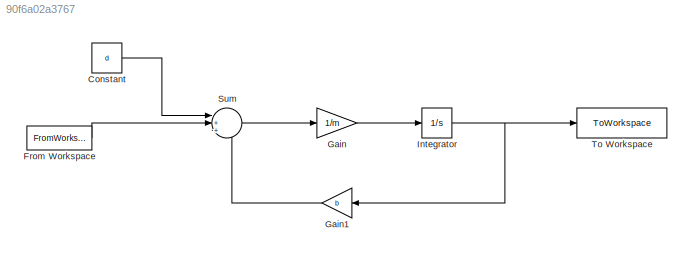
MODEL slx_90f6a02a3767
KIND model
CONFIG AbsTol = auto
CONFIG EnableMultiTasking = off
CONFIG FixedStep = 1e-3
CONFIG MaxStep = auto
CONFIG MinStep = auto
CONFIG RelTol = 1e-3
CONFIG SampleTimeConstraint = Unconstrained
CONFIG SolverName = FixedStepAuto
CONFIG StartTime = 0.0
CONFIG StopTime = 100
BLOCK [Constant] Constant
  Value = d
BLOCK [FromWorkspace] From Workspace
  VariableName = u
BLOCK [Gain] Gain
  Gain = 1/m
BLOCK [Gain] Gain1
  Gain = b
  NameLocation = top
BLOCK [Integrator] Integrator
BLOCK [Sum] Sum
  Inputs = |++-
BLOCK [ToWorkspace] To Workspace
  FixptAsFi = on
  MaxDataPoints = inf
  SampleTime = -1
  SaveFormat = Structure With Time
  VariableName = v
LINE Constant:1 -> Sum:1
LINE From Workspace:1 -> Sum:2
LINE Gain1:1 -> Sum:3
LINE Gain:1 -> Integrator:1
NET Integrator:1 -> Gain1:1, To Workspace:1
LINE Sum:1 -> Gain:1
note: NET lines group one-source signal fan-out (src -> all destinations, sorted); 1:1 wires keep LINE
